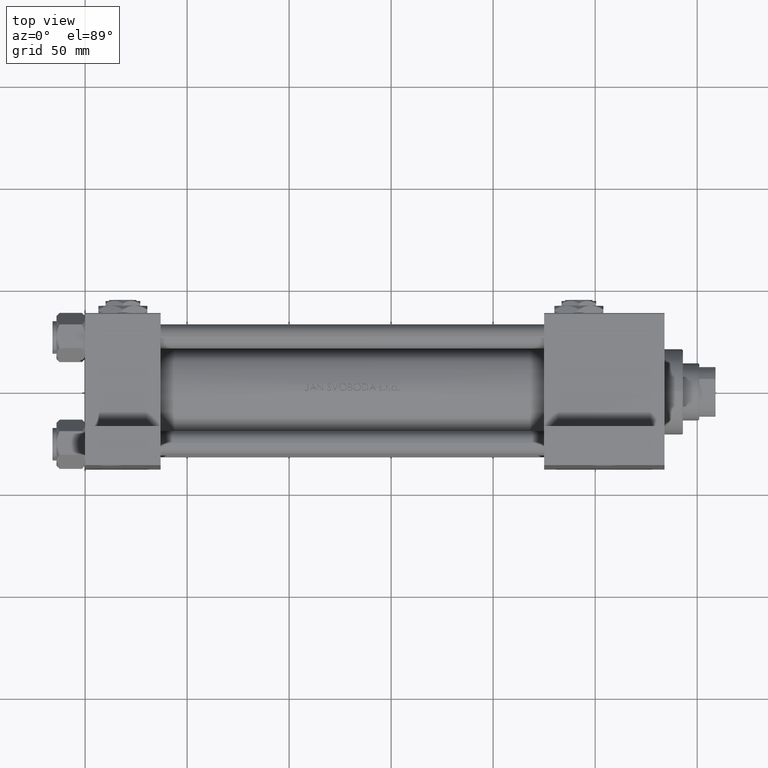
[diagram: clean part render]
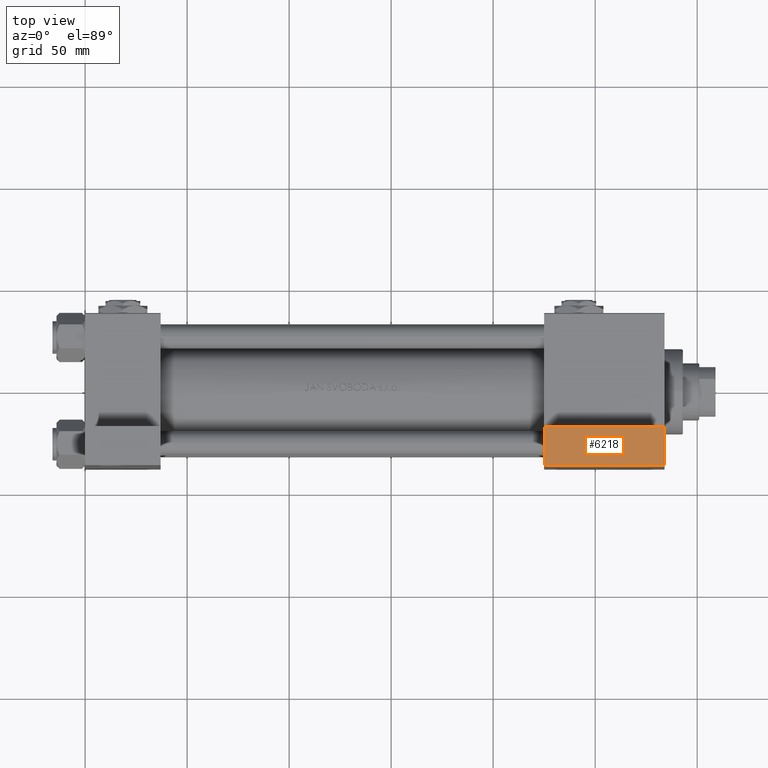
[diagram: same view with one face highlighted and labeled with its STEP entity id]
A machine part, top view. The second image highlights one B-rep face of the part: STEP entity #6218.
In plain terms, the highlighted planar face has unit normal (0, 0, 1).
Its self-contained STEP definition (entity closure, byte-faithful):
#437 = DIRECTION ( 'NONE',  ( 0.000000000000000000, 0.000000000000000000, -1.000000000000000000 ) ) ;
#1939 = EDGE_LOOP ( 'NONE', ( #31808, #24700, #36734, #27338 ) ) ;
#2511 = CARTESIAN_POINT ( 'NONE',  ( 284.0000000000000568, -63.50000000000002842, -18.50000000000000000 ) ) ;
#2751 = CARTESIAN_POINT ( 'NONE',  ( 225.0000000000000000, -63.50000000000002842, -18.50000000000000000 ) ) ;
#3221 = VERTEX_POINT ( 'NONE', #24892 ) ;
#3396 = VECTOR ( 'NONE', #15564, 1000.000000000000000 ) ;
#3932 = FACE_OUTER_BOUND ( 'NONE', #1939, .T. ) ;
#6218 = ADVANCED_FACE ( 'NONE', ( #3932 ), #19047, .T. ) ;
#6901 = EDGE_CURVE ( 'NONE', #3221, #43747, #29793, .T. ) ;
#11840 = CARTESIAN_POINT ( 'NONE',  ( 284.0000000000000568, -63.50000000000002842, -18.50000000000000000 ) ) ;
#11886 = CARTESIAN_POINT ( 'NONE',  ( 225.0000000000000000, -63.50000000000002842, -37.50000000000000000 ) ) ;
#12590 = CARTESIAN_POINT ( 'NONE',  ( 225.0000000000000000, -63.50000000000002842, -18.50000000000000000 ) ) ;
#15564 = DIRECTION ( 'NONE',  ( 0.000000000000000000, 0.000000000000000000, -1.000000000000000000 ) ) ;
#17116 = CARTESIAN_POINT ( 'NONE',  ( 225.0000000000000000, -63.50000000000002842, -18.50000000000000000 ) ) ;
#17673 = DIRECTION ( 'NONE',  ( -1.000000000000000000, -0.000000000000000000, -0.000000000000000000 ) ) ;
#19047 = PLANE ( 'NONE',  #47448 ) ;
#19530 = LINE ( 'NONE', #12590, #3396 ) ;
#19531 = CARTESIAN_POINT ( 'NONE',  ( 225.0000000000000000, -63.50000000000002842, -18.50000000000000000 ) ) ;
#20993 = EDGE_CURVE ( 'NONE', #32416, #43628, #43645, .T. ) ;
#24027 = VECTOR ( 'NONE', #32000, 1000.000000000000000 ) ;
#24486 = EDGE_CURVE ( 'NONE', #43628, #43747, #19530, .T. ) ;
#24700 = ORIENTED_EDGE ( 'NONE', *, *, #48080, .F. ) ;
#24892 = CARTESIAN_POINT ( 'NONE',  ( 284.0000000000000568, -63.50000000000002842, -37.50000000000000000 ) ) ;
#27338 = ORIENTED_EDGE ( 'NONE', *, *, #24486, .T. ) ;
#29793 = LINE ( 'NONE', #33037, #35623 ) ;
#31808 = ORIENTED_EDGE ( 'NONE', *, *, #6901, .F. ) ;
#32000 = DIRECTION ( 'NONE',  ( -1.000000000000000000, -0.000000000000000000, -0.000000000000000000 ) ) ;
#32416 = VERTEX_POINT ( 'NONE', #2511 ) ;
#33037 = CARTESIAN_POINT ( 'NONE',  ( 225.0000000000000000, -63.50000000000002842, -37.50000000000000000 ) ) ;
#34895 = DIRECTION ( 'NONE',  ( 0.000000000000000000, -1.000000000000000000, 0.000000000000000000 ) ) ;
#35623 = VECTOR ( 'NONE', #17673, 1000.000000000000000 ) ;
#36734 = ORIENTED_EDGE ( 'NONE', *, *, #20993, .T. ) ;
#38588 = LINE ( 'NONE', #11840, #45902 ) ;
#38610 = DIRECTION ( 'NONE',  ( 0.000000000000000000, -0.000000000000000000, -1.000000000000000000 ) ) ;
#43628 = VERTEX_POINT ( 'NONE', #2751 ) ;
#43645 = LINE ( 'NONE', #17116, #24027 ) ;
#43747 = VERTEX_POINT ( 'NONE', #11886 ) ;
#45902 = VECTOR ( 'NONE', #437, 1000.000000000000000 ) ;
#47448 = AXIS2_PLACEMENT_3D ( 'NONE', #19531, #34895, #38610 ) ;
#48080 = EDGE_CURVE ( 'NONE', #32416, #3221, #38588, .T. ) ;